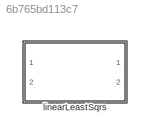
MODEL slx_6b765bd113c7
KIND library
CONFIG AbsTol = auto
CONFIG EnableMultiTasking = off
CONFIG FixedStep = auto
CONFIG MaxStep = auto
CONFIG MinStep = auto
CONFIG RelTol = 1e-3
CONFIG SampleTimeConstraint = Unconstrained
CONFIG SolverName = VariableStepAuto
CONFIG StartTime = 0.0
CONFIG StopTime = 10.0
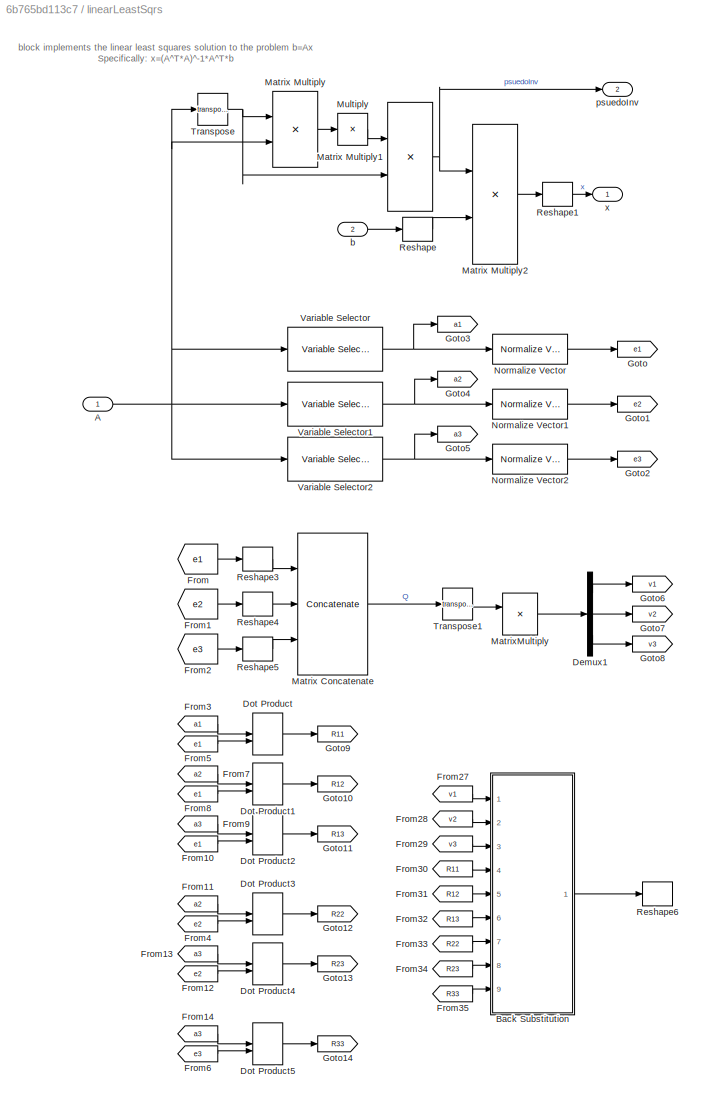
BLOCK [SubSystem] linearLeastSqrs
  Ports = [2, 2]
  RequestExecContextInheritance = off
BLOCK [Inport] linearLeastSqrs/A
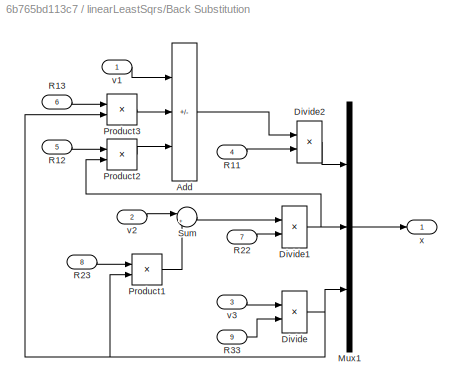
BLOCK [SubSystem] linearLeastSqrs/Back Substitution
  Commented = on
  Ports = [9, 1]
  RequestExecContextInheritance = off
BLOCK [Sum] linearLeastSqrs/Back Substitution/Add
  IconShape = rectangular
  Inputs = +--
  Ports = [3, 1]
BLOCK [Product] linearLeastSqrs/Back Substitution/Divide
  Inputs = */
  Ports = [2, 1]
BLOCK [Product] linearLeastSqrs/Back Substitution/Divide1
  Inputs = */
  Ports = [2, 1]
BLOCK [Product] linearLeastSqrs/Back Substitution/Divide2
  Inputs = */
  Ports = [2, 1]
BLOCK [Mux] linearLeastSqrs/Back Substitution/Mux1
  DisplayOption = bar
  Inputs = 3
  Ports = [3, 1]
BLOCK [Product] linearLeastSqrs/Back Substitution/Product1
  Ports = [2, 1]
BLOCK [Product] linearLeastSqrs/Back Substitution/Product2
  Ports = [2, 1]
BLOCK [Product] linearLeastSqrs/Back Substitution/Product3
  Ports = [2, 1]
BLOCK [Inport] linearLeastSqrs/Back Substitution/R11
  Port = 4
BLOCK [Inport] linearLeastSqrs/Back Substitution/R12
  Port = 5
BLOCK [Inport] linearLeastSqrs/Back Substitution/R13
  Port = 6
BLOCK [Inport] linearLeastSqrs/Back Substitution/R22
  Port = 7
BLOCK [Inport] linearLeastSqrs/Back Substitution/R23
  Port = 8
BLOCK [Inport] linearLeastSqrs/Back Substitution/R33
  Port = 9
BLOCK [Sum] linearLeastSqrs/Back Substitution/Sum
  Inputs = |+-
  Ports = [2, 1]
BLOCK [Inport] linearLeastSqrs/Back Substitution/v1
BLOCK [Inport] linearLeastSqrs/Back Substitution/v2
  Port = 2
BLOCK [Inport] linearLeastSqrs/Back Substitution/v3
  Port = 3
BLOCK [Outport] linearLeastSqrs/Back Substitution/x
BLOCK [Demux] linearLeastSqrs/Demux1
  Commented = on
  Outputs = 3
  Ports = [1, 3]
BLOCK [DotProduct] linearLeastSqrs/Dot Product
  Commented = on
  OutDataTypeStr = Inherit: Inherit via internal rule
BLOCK [DotProduct] linearLeastSqrs/Dot Product1
  Commented = on
  OutDataTypeStr = Inherit: Inherit via internal rule
BLOCK [DotProduct] linearLeastSqrs/Dot Product2
  Commented = on
  OutDataTypeStr = Inherit: Inherit via internal rule
BLOCK [DotProduct] linearLeastSqrs/Dot Product3
  Commented = on
  OutDataTypeStr = Inherit: Inherit via internal rule
BLOCK [DotProduct] linearLeastSqrs/Dot Product4
  Commented = on
  OutDataTypeStr = Inherit: Inherit via internal rule
BLOCK [DotProduct] linearLeastSqrs/Dot Product5
  Commented = on
  OutDataTypeStr = Inherit: Inherit via internal rule
BLOCK [From] linearLeastSqrs/From
  Commented = on
  GotoTag = e1
BLOCK [From] linearLeastSqrs/From1
  Commented = on
  GotoTag = e2
BLOCK [From] linearLeastSqrs/From10
  Commented = on
  GotoTag = e1
BLOCK [From] linearLeastSqrs/From11
  Commented = on
  GotoTag = a2
BLOCK [From] linearLeastSqrs/From12
  Commented = on
  GotoTag = e2
BLOCK [From] linearLeastSqrs/From13
  Commented = on
  GotoTag = a3
BLOCK [From] linearLeastSqrs/From14
  Commented = on
  GotoTag = a3
BLOCK [From] linearLeastSqrs/From2
  Commented = on
  GotoTag = e3
BLOCK [From] linearLeastSqrs/From27
  Commented = on
  GotoTag = v1
BLOCK [From] linearLeastSqrs/From28
  Commented = on
  GotoTag = v2
BLOCK [From] linearLeastSqrs/From29
  Commented = on
  GotoTag = v3
BLOCK [From] linearLeastSqrs/From3
  Commented = on
  GotoTag = a1
BLOCK [From] linearLeastSqrs/From30
  Commented = on
  GotoTag = R11
BLOCK [From] linearLeastSqrs/From31
  Commented = on
  GotoTag = R12
BLOCK [From] linearLeastSqrs/From32
  Commented = on
  GotoTag = R13
BLOCK [From] linearLeastSqrs/From33
  Commented = on
  GotoTag = R22
BLOCK [From] linearLeastSqrs/From34
  Commented = on
  GotoTag = R23
BLOCK [From] linearLeastSqrs/From35
  Commented = on
  GotoTag = R33
BLOCK [From] linearLeastSqrs/From4
  Commented = on
  GotoTag = e2
BLOCK [From] linearLeastSqrs/From5
  Commented = on
  GotoTag = e1
BLOCK [From] linearLeastSqrs/From6
  Commented = on
  GotoTag = e3
BLOCK [From] linearLeastSqrs/From7
  Commented = on
  GotoTag = a2
BLOCK [From] linearLeastSqrs/From8
  Commented = on
  GotoTag = e1
BLOCK [From] linearLeastSqrs/From9
  Commented = on
  GotoTag = a3
BLOCK [Goto] linearLeastSqrs/Goto
  Commented = on
  GotoTag = e1
BLOCK [Goto] linearLeastSqrs/Goto1
  Commented = on
  GotoTag = e2
BLOCK [Goto] linearLeastSqrs/Goto10
  Commented = on
  GotoTag = R12
BLOCK [Goto] linearLeastSqrs/Goto11
  Commented = on
  GotoTag = R13
BLOCK [Goto] linearLeastSqrs/Goto12
  Commented = on
  GotoTag = R22
BLOCK [Goto] linearLeastSqrs/Goto13
  Commented = on
  GotoTag = R23
BLOCK [Goto] linearLeastSqrs/Goto14
  Commented = on
  GotoTag = R33
BLOCK [Goto] linearLeastSqrs/Goto2
  Commented = on
  GotoTag = e3
BLOCK [Goto] linearLeastSqrs/Goto3
  Commented = on
  GotoTag = a1
BLOCK [Goto] linearLeastSqrs/Goto4
  Commented = on
  GotoTag = a2
BLOCK [Goto] linearLeastSqrs/Goto5
  Commented = on
  GotoTag = a3
BLOCK [Goto] linearLeastSqrs/Goto6
  Commented = on
  GotoTag = v1
BLOCK [Goto] linearLeastSqrs/Goto7
  Commented = on
  GotoTag = v2
BLOCK [Goto] linearLeastSqrs/Goto8
  Commented = on
  GotoTag = v3
BLOCK [Goto] linearLeastSqrs/Goto9
  Commented = on
  GotoTag = R11
BLOCK [Concatenate] linearLeastSqrs/Matrix Concatenate
  Commented = on
  ConcatenateDimension = 2
  Mode = Multidimensional array
  NumInputs = 3
  Ports = [3, 1]
BLOCK [Product] linearLeastSqrs/Matrix Multiply
  Multiplication = Matrix(*)
  Ports = [2, 1]
BLOCK [Product] linearLeastSqrs/Matrix Multiply1
  Multiplication = Matrix(*)
  Ports = [2, 1]
BLOCK [Product] linearLeastSqrs/Matrix Multiply2
  Multiplication = Matrix(*)
  Ports = [2, 1]
BLOCK [Product] linearLeastSqrs/MatrixMultiply
  Commented = on
  Multiplication = Matrix(*)
  Ports = [2, 1]
BLOCK [Product] linearLeastSqrs/Multiply
  Inputs = /
  Multiplication = Matrix(*)
  Ports = [1, 1]
BLOCK [Reference] linearLeastSqrs/Normalize Vector  REF=vrlib/Utilities/Normalize Vector
  Commented = on
  Ports = [1, 1]
  SourceBlock = vrlib/Utilities/Normalize Vector
  SourceProductBaseCode = SL
  SourceType = Normalize Vector
BLOCK [Reference] linearLeastSqrs/Normalize Vector1  REF=vrlib/Utilities/Normalize Vector
  Commented = on
  Ports = [1, 1]
  SourceBlock = vrlib/Utilities/Normalize Vector
  SourceProductBaseCode = SL
  SourceType = Normalize Vector
BLOCK [Reference] linearLeastSqrs/Normalize Vector2  REF=vrlib/Utilities/Normalize Vector
  Commented = on
  Ports = [1, 1]
  SourceBlock = vrlib/Utilities/Normalize Vector
  SourceProductBaseCode = SL
  SourceType = Normalize Vector
BLOCK [Reshape] linearLeastSqrs/Reshape
  OutputDimensionality = Column vector (2-D)
  Ports = [1, 1]
BLOCK [Reshape] linearLeastSqrs/Reshape1
  OutputDimensionality = Column vector (2-D)
  Ports = [1, 1]
BLOCK [Reshape] linearLeastSqrs/Reshape3
  Commented = on
  OutputDimensionality = Column vector (2-D)
  Ports = [1, 1]
BLOCK [Reshape] linearLeastSqrs/Reshape4
  Commented = on
  OutputDimensionality = Column vector (2-D)
  Ports = [1, 1]
BLOCK [Reshape] linearLeastSqrs/Reshape5
  Commented = on
  OutputDimensionality = Column vector (2-D)
  Ports = [1, 1]
BLOCK [Reshape] linearLeastSqrs/Reshape6
  Commented = on
  OutputDimensionality = Column vector (2-D)
  Ports = [1, 1]
BLOCK [Math] linearLeastSqrs/Transpose
  Operator = transpose
  Ports = [1, 1]
  SignedPower = on
BLOCK [Math] linearLeastSqrs/Transpose1
  Commented = on
  Operator = transpose
  Ports = [1, 1]
BLOCK [Reference] linearLeastSqrs/Variable Selector  REF=dspindex/Variable
Selector
  Commented = on
  Ports = [1, 1]
  SourceBlock = dspindex/Variable\nSelector
  SourceProductBaseCode = DS
  SourceType = Variable Selector
BLOCK [Reference] linearLeastSqrs/Variable Selector1  REF=dspindex/Variable
Selector
  Commented = on
  Ports = [1, 1]
  SourceBlock = dspindex/Variable\nSelector
  SourceProductBaseCode = DS
  SourceType = Variable Selector
BLOCK [Reference] linearLeastSqrs/Variable Selector2  REF=dspindex/Variable
Selector
  Commented = on
  Ports = [1, 1]
  SourceBlock = dspindex/Variable\nSelector
  SourceProductBaseCode = DS
  SourceType = Variable Selector
BLOCK [Inport] linearLeastSqrs/b
  Port = 2
BLOCK [Outport] linearLeastSqrs/psuedoInv
  Port = 2
  VectorParamsAs1DForOutWhenUnconnected = off
BLOCK [Outport] linearLeastSqrs/x
  VectorParamsAs1DForOutWhenUnconnected = off
ANNOTATION linearLeastSqrs: block implements the linear least squares solution to the problem b=Ax Specifically: x=(A^T*A)^-1*A^T*b
NET linearLeastSqrs/A:1 -> linearLeastSqrs/Matrix Multiply:2, linearLeastSqrs/Transpose:1, linearLeastSqrs/Variable Selector1:1, linearLeastSqrs/Variable Selector2:1, linearLeastSqrs/Variable Selector:1
LINE linearLeastSqrs/Back Substitution/Add:1 -> linearLeastSqrs/Back Substitution/Divide2:1
NET linearLeastSqrs/Back Substitution/Divide1:1 -> linearLeastSqrs/Back Substitution/Mux1:2, linearLeastSqrs/Back Substitution/Product2:2
LINE linearLeastSqrs/Back Substitution/Divide2:1 -> linearLeastSqrs/Back Substitution/Mux1:1
NET linearLeastSqrs/Back Substitution/Divide:1 -> linearLeastSqrs/Back Substitution/Mux1:3, linearLeastSqrs/Back Substitution/Product1:2, linearLeastSqrs/Back Substitution/Product3:2
LINE linearLeastSqrs/Back Substitution/Mux1:1 -> linearLeastSqrs/Back Substitution/x:1
LINE linearLeastSqrs/Back Substitution/Product1:1 -> linearLeastSqrs/Back Substitution/Sum:2
LINE linearLeastSqrs/Back Substitution/Product2:1 -> linearLeastSqrs/Back Substitution/Add:3
LINE linearLeastSqrs/Back Substitution/Product3:1 -> linearLeastSqrs/Back Substitution/Add:2
LINE linearLeastSqrs/Back Substitution/R11:1 -> linearLeastSqrs/Back Substitution/Divide2:2
LINE linearLeastSqrs/Back Substitution/R12:1 -> linearLeastSqrs/Back Substitution/Product2:1
LINE linearLeastSqrs/Back Substitution/R13:1 -> linearLeastSqrs/Back Substitution/Product3:1
LINE linearLeastSqrs/Back Substitution/R22:1 -> linearLeastSqrs/Back Substitution/Divide1:2
LINE linearLeastSqrs/Back Substitution/R23:1 -> linearLeastSqrs/Back Substitution/Product1:1
LINE linearLeastSqrs/Back Substitution/R33:1 -> linearLeastSqrs/Back Substitution/Divide:2
LINE linearLeastSqrs/Back Substitution/Sum:1 -> linearLeastSqrs/Back Substitution/Divide1:1
LINE linearLeastSqrs/Back Substitution/v1:1 -> linearLeastSqrs/Back Substitution/Add:1
LINE linearLeastSqrs/Back Substitution/v2:1 -> linearLeastSqrs/Back Substitution/Sum:1
LINE linearLeastSqrs/Back Substitution/v3:1 -> linearLeastSqrs/Back Substitution/Divide:1
LINE linearLeastSqrs/Back Substitution:1 -> linearLeastSqrs/Reshape6:1
LINE linearLeastSqrs/Demux1:1 -> linearLeastSqrs/Goto6:1
LINE linearLeastSqrs/Demux1:2 -> linearLeastSqrs/Goto7:1
LINE linearLeastSqrs/Demux1:3 -> linearLeastSqrs/Goto8:1
LINE linearLeastSqrs/Dot Product1:1 -> linearLeastSqrs/Goto10:1
LINE linearLeastSqrs/Dot Product2:1 -> linearLeastSqrs/Goto11:1
LINE linearLeastSqrs/Dot Product3:1 -> linearLeastSqrs/Goto12:1
LINE linearLeastSqrs/Dot Product4:1 -> linearLeastSqrs/Goto13:1
LINE linearLeastSqrs/Dot Product5:1 -> linearLeastSqrs/Goto14:1
LINE linearLeastSqrs/Dot Product:1 -> linearLeastSqrs/Goto9:1
LINE linearLeastSqrs/From10:1 -> linearLeastSqrs/Dot Product2:2
LINE linearLeastSqrs/From11:1 -> linearLeastSqrs/Dot Product3:1
LINE linearLeastSqrs/From12:1 -> linearLeastSqrs/Dot Product4:2
LINE linearLeastSqrs/From13:1 -> linearLeastSqrs/Dot Product4:1
LINE linearLeastSqrs/From14:1 -> linearLeastSqrs/Dot Product5:1
LINE linearLeastSqrs/From1:1 -> linearLeastSqrs/Reshape4:1
LINE linearLeastSqrs/From27:1 -> linearLeastSqrs/Back Substitution:1
LINE linearLeastSqrs/From28:1 -> linearLeastSqrs/Back Substitution:2
LINE linearLeastSqrs/From29:1 -> linearLeastSqrs/Back Substitution:3
LINE linearLeastSqrs/From2:1 -> linearLeastSqrs/Reshape5:1
LINE linearLeastSqrs/From30:1 -> linearLeastSqrs/Back Substitution:4
LINE linearLeastSqrs/From31:1 -> linearLeastSqrs/Back Substitution:5
LINE linearLeastSqrs/From32:1 -> linearLeastSqrs/Back Substitution:6
LINE linearLeastSqrs/From33:1 -> linearLeastSqrs/Back Substitution:7
LINE linearLeastSqrs/From34:1 -> linearLeastSqrs/Back Substitution:8
LINE linearLeastSqrs/From35:1 -> linearLeastSqrs/Back Substitution:9
LINE linearLeastSqrs/From3:1 -> linearLeastSqrs/Dot Product:1
LINE linearLeastSqrs/From4:1 -> linearLeastSqrs/Dot Product3:2
LINE linearLeastSqrs/From5:1 -> linearLeastSqrs/Dot Product:2
LINE linearLeastSqrs/From6:1 -> linearLeastSqrs/Dot Product5:2
LINE linearLeastSqrs/From7:1 -> linearLeastSqrs/Dot Product1:1
LINE linearLeastSqrs/From8:1 -> linearLeastSqrs/Dot Product1:2
LINE linearLeastSqrs/From9:1 -> linearLeastSqrs/Dot Product2:1
LINE linearLeastSqrs/From:1 -> linearLeastSqrs/Reshape3:1
LINE linearLeastSqrs/Matrix Concatenate:1 -> linearLeastSqrs/Transpose1:1
NET linearLeastSqrs/Matrix Multiply1:1 -> linearLeastSqrs/Matrix Multiply2:1, linearLeastSqrs/psuedoInv:1
LINE linearLeastSqrs/Matrix Multiply2:1 -> linearLeastSqrs/Reshape1:1
LINE linearLeastSqrs/Matrix Multiply:1 -> linearLeastSqrs/Multiply:1
LINE linearLeastSqrs/MatrixMultiply:1 -> linearLeastSqrs/Demux1:1
LINE linearLeastSqrs/Multiply:1 -> linearLeastSqrs/Matrix Multiply1:1
LINE linearLeastSqrs/Normalize Vector1:1 -> linearLeastSqrs/Goto1:1
LINE linearLeastSqrs/Normalize Vector2:1 -> linearLeastSqrs/Goto2:1
LINE linearLeastSqrs/Normalize Vector:1 -> linearLeastSqrs/Goto:1
LINE linearLeastSqrs/Reshape1:1 -> linearLeastSqrs/x:1
LINE linearLeastSqrs/Reshape3:1 -> linearLeastSqrs/Matrix Concatenate:1
LINE linearLeastSqrs/Reshape4:1 -> linearLeastSqrs/Matrix Concatenate:2
LINE linearLeastSqrs/Reshape5:1 -> linearLeastSqrs/Matrix Concatenate:3
LINE linearLeastSqrs/Reshape:1 -> linearLeastSqrs/Matrix Multiply2:2
LINE linearLeastSqrs/Transpose1:1 -> linearLeastSqrs/MatrixMultiply:1
NET linearLeastSqrs/Transpose:1 -> linearLeastSqrs/Matrix Multiply1:2, linearLeastSqrs/Matrix Multiply:1
NET linearLeastSqrs/Variable Selector1:1 -> linearLeastSqrs/Goto4:1, linearLeastSqrs/Normalize Vector1:1
NET linearLeastSqrs/Variable Selector2:1 -> linearLeastSqrs/Goto5:1, linearLeastSqrs/Normalize Vector2:1
NET linearLeastSqrs/Variable Selector:1 -> linearLeastSqrs/Goto3:1, linearLeastSqrs/Normalize Vector:1
LINE linearLeastSqrs/b:1 -> linearLeastSqrs/Reshape:1
note: NET lines group one-source signal fan-out (src -> all destinations, sorted); 1:1 wires keep LINE
